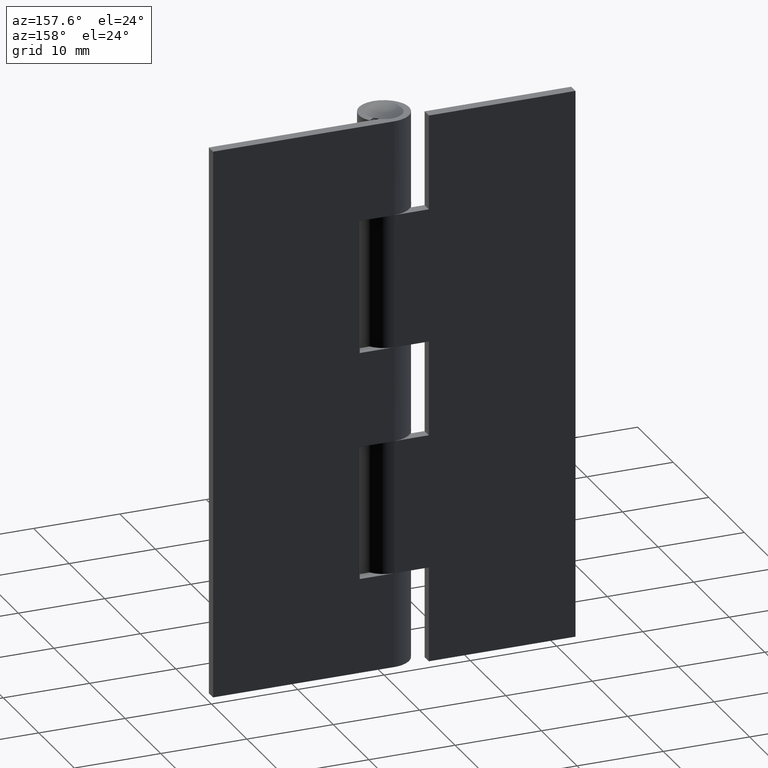
[diagram: clean part render]
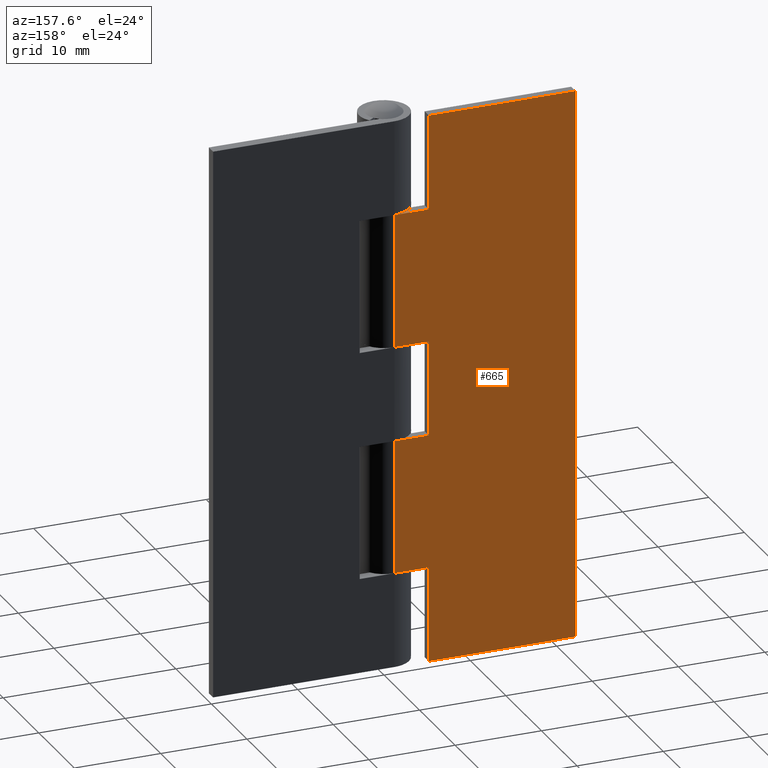
[diagram: same view with one face highlighted and labeled with its STEP entity id]
A machine part, auxiliary view. The second image highlights one B-rep face of the part: STEP entity #665.
In plain terms, the highlighted face is a freeform B-spline surface patch.
Its self-contained STEP definition (entity closure, byte-faithful):
#156=CARTESIAN_POINT('',(0.0,2.900002000000000,11.0));
#157=VERTEX_POINT('',#156);
#187=CARTESIAN_POINT('',(0.0,2.900002000000000,26.500000000000000));
#188=VERTEX_POINT('',#187);
#189=CARTESIAN_POINT('',(0.0,2.900002000000000,26.500000000000000));
#190=CARTESIAN_POINT('',(0.0,2.900002000000000,11.0));
#191=QUASI_UNIFORM_CURVE('',1,(#189,#190),.UNSPECIFIED.,.F.,.U.);
#192=EDGE_CURVE('',#188,#157,#191,.T.);
#237=CARTESIAN_POINT('',(0.0,2.900002000000000,53.0));
#238=VERTEX_POINT('',#237);
#271=CARTESIAN_POINT('',(-3.999999999999885,2.900001999999955,53.0));
#272=VERTEX_POINT('',#271);
#273=CARTESIAN_POINT('',(0.0,2.900002000000000,53.0));
#274=CARTESIAN_POINT('',(-3.999999999999885,2.900001999999955,53.0));
#275=QUASI_UNIFORM_CURVE('',1,(#273,#274),.UNSPECIFIED.,.F.,.U.);
#276=EDGE_CURVE('',#238,#272,#275,.T.);
#337=CARTESIAN_POINT('',(-3.999999999999885,2.900002000000000,64.0));
#338=VERTEX_POINT('',#337);
#339=CARTESIAN_POINT('',(-3.999999999999885,2.900001999999955,53.0));
#340=CARTESIAN_POINT('',(-3.999999999999885,2.900002000000000,64.0));
#341=QUASI_UNIFORM_CURVE('',1,(#339,#340),.UNSPECIFIED.,.F.,.U.);
#342=EDGE_CURVE('',#272,#338,#341,.T.);
#374=CARTESIAN_POINT('',(-3.999999999999885,2.900001999999955,11.0));
#375=VERTEX_POINT('',#374);
#381=CARTESIAN_POINT('',(-3.999999999999885,2.900001999999955,11.0));
#382=CARTESIAN_POINT('',(0.0,2.900002000000000,11.0));
#383=QUASI_UNIFORM_CURVE('',1,(#381,#382),.UNSPECIFIED.,.F.,.U.);
#384=EDGE_CURVE('',#375,#157,#383,.T.);
#396=CARTESIAN_POINT('',(-3.999999999999885,2.900001999999955,0.0));
#397=VERTEX_POINT('',#396);
#403=CARTESIAN_POINT('',(-3.999999999999885,2.900001999999955,0.0));
#404=CARTESIAN_POINT('',(-3.999999999999885,2.900001999999955,11.0));
#405=QUASI_UNIFORM_CURVE('',1,(#403,#404),.UNSPECIFIED.,.F.,.U.);
#406=EDGE_CURVE('',#397,#375,#405,.T.);
#422=CARTESIAN_POINT('',(-3.999999999999885,2.900001999999955,26.500000000000000));
#423=VERTEX_POINT('',#422);
#424=CARTESIAN_POINT('',(-3.999999999999885,2.900001999999955,26.500000000000000));
#425=CARTESIAN_POINT('',(0.0,2.900002000000000,26.500000000000000));
#426=QUASI_UNIFORM_CURVE('',1,(#424,#425),.UNSPECIFIED.,.F.,.U.);
#427=EDGE_CURVE('',#423,#188,#426,.T.);
#498=CARTESIAN_POINT('',(-3.999999999999885,2.900001999999955,37.500000000000000));
#499=VERTEX_POINT('',#498);
#505=CARTESIAN_POINT('',(0.0,2.900001999999955,37.500000000000000));
#506=VERTEX_POINT('',#505);
#507=CARTESIAN_POINT('',(0.0,2.900001999999955,37.500000000000000));
#508=CARTESIAN_POINT('',(-3.999999999999885,2.900001999999955,37.500000000000000));
#509=QUASI_UNIFORM_CURVE('',1,(#507,#508),.UNSPECIFIED.,.F.,.U.);
#510=EDGE_CURVE('',#506,#499,#509,.T.);
#557=CARTESIAN_POINT('',(-3.999999999999885,2.900001999999955,37.500000000000000));
#558=CARTESIAN_POINT('',(-3.999999999999885,2.900001999999955,26.500000000000000));
#559=QUASI_UNIFORM_CURVE('',1,(#557,#558),.UNSPECIFIED.,.F.,.U.);
#560=EDGE_CURVE('',#499,#423,#559,.T.);
#579=CARTESIAN_POINT('',(-21.0,2.900002000000000,0.0));
#580=VERTEX_POINT('',#579);
#586=CARTESIAN_POINT('',(-3.999999999999885,2.900001999999955,0.0));
#587=CARTESIAN_POINT('',(-21.0,2.900002000000000,0.0));
#588=QUASI_UNIFORM_CURVE('',1,(#586,#587),.UNSPECIFIED.,.F.,.U.);
#589=EDGE_CURVE('',#397,#580,#588,.T.);
#607=CARTESIAN_POINT('',(-21.0,2.900002000000000,64.0));
#608=VERTEX_POINT('',#607);
#609=CARTESIAN_POINT('',(-3.999999999999885,2.900002000000000,64.0));
#610=CARTESIAN_POINT('',(-21.0,2.900002000000000,64.0));
#611=QUASI_UNIFORM_CURVE('',1,(#609,#610),.UNSPECIFIED.,.F.,.U.);
#612=EDGE_CURVE('',#338,#608,#611,.T.);
#634=CARTESIAN_POINT('',(-21.0,2.900002000000000,64.0));
#635=CARTESIAN_POINT('',(-21.0,2.900002000000000,0.0));
#636=QUASI_UNIFORM_CURVE('',1,(#634,#635),.UNSPECIFIED.,.F.,.U.);
#637=EDGE_CURVE('',#608,#580,#636,.T.);
#642=CARTESIAN_POINT('',(-22.048949959297929,2.900002000000000,67.196799875955577));
#643=CARTESIAN_POINT('',(-22.048949959297929,2.900002000000000,-3.196801592569350));
#644=CARTESIAN_POINT('',(1.048950522561818,2.900002000000000,67.196799875955577));
#645=CARTESIAN_POINT('',(1.048950522561818,2.900002000000000,-3.196801592569350));
#646=B_SPLINE_SURFACE_WITH_KNOTS('',1,1,((#642,#644),(#643,#645)),.UNSPECIFIED.,.F.,.F.,.U.,(2,2),(2,2),(0.0,70.393601468524921),(0.0,23.097900481859739),.UNSPECIFIED.);
#647=ORIENTED_EDGE('',*,*,#612,.F.);
#648=ORIENTED_EDGE('',*,*,#342,.F.);
#649=ORIENTED_EDGE('',*,*,#276,.F.);
#650=CARTESIAN_POINT('',(0.0,2.900002000000000,53.0));
#651=CARTESIAN_POINT('',(0.0,2.900001999999955,37.500000000000000));
#652=QUASI_UNIFORM_CURVE('',1,(#650,#651),.UNSPECIFIED.,.F.,.U.);
#653=EDGE_CURVE('',#238,#506,#652,.T.);
#654=ORIENTED_EDGE('',*,*,#653,.T.);
#655=ORIENTED_EDGE('',*,*,#510,.T.);
#656=ORIENTED_EDGE('',*,*,#560,.T.);
#657=ORIENTED_EDGE('',*,*,#427,.T.);
#658=ORIENTED_EDGE('',*,*,#192,.T.);
#659=ORIENTED_EDGE('',*,*,#384,.F.);
#660=ORIENTED_EDGE('',*,*,#406,.F.);
#661=ORIENTED_EDGE('',*,*,#589,.T.);
#662=ORIENTED_EDGE('',*,*,#637,.F.);
#663=EDGE_LOOP('',(#647,#648,#649,#654,#655,#656,#657,#658,#659,#660,#661,#662));
#664=FACE_OUTER_BOUND('',#663,.T.);
#665=ADVANCED_FACE('',(#664),#646,.F.);